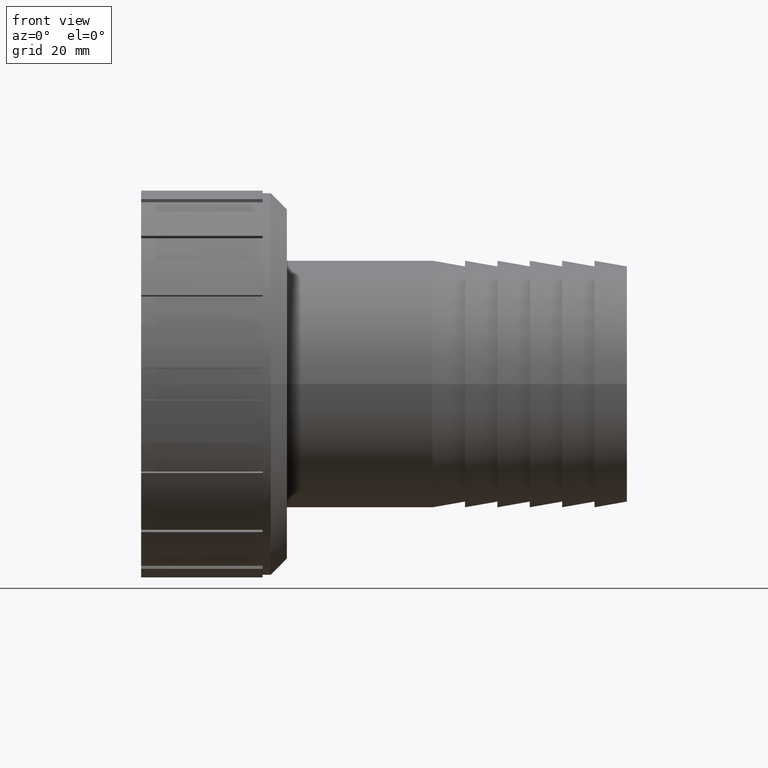
[diagram: clean part render]
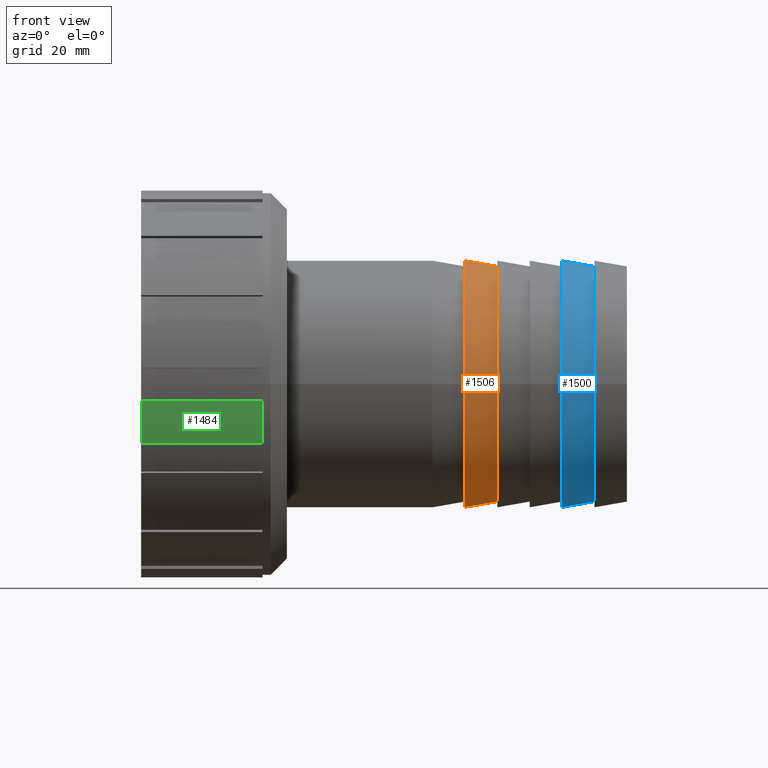
[diagram: same view with three faces highlighted in distinct colors, each labeled with its STEP entity id]
A machine part, front view with three faces highlighted in distinct colors.
Their STEP definitions:

[orange] entity #1506 — the highlighted conical surface has half-angle 10 deg.
#20=CONICAL_SURFACE('',#1672,29.3064472092134,9.99999999999997);
#58=FACE_BOUND('',#326,.T.);
#141=CIRCLE('',#1671,28.6128944184267);
#142=CIRCLE('',#1673,30.);
#225=FACE_OUTER_BOUND('',#325,.T.);
#325=EDGE_LOOP('',(#1361));
#326=EDGE_LOOP('',(#1362));
#732=VERTEX_POINT('',#2574);
#733=VERTEX_POINT('',#2577);
#943=EDGE_CURVE('',#732,#732,#141,.T.);
#944=EDGE_CURVE('',#733,#733,#142,.T.);
#1361=ORIENTED_EDGE('',*,*,#943,.T.);
#1362=ORIENTED_EDGE('',*,*,#944,.F.);
#1506=ADVANCED_FACE('',(#225,#58),#20,.T.);
#1671=AXIS2_PLACEMENT_3D('',#2575,#2127,#2128);
#1672=AXIS2_PLACEMENT_3D('',#2576,#2129,#2130);
#1673=AXIS2_PLACEMENT_3D('',#2578,#2131,#2132);
#2127=DIRECTION('center_axis',(-1.,0.,0.));
#2128=DIRECTION('ref_axis',(0.,0.,1.));
#2129=DIRECTION('center_axis',(-1.,0.,0.));
#2130=DIRECTION('ref_axis',(0.,-1.,0.));
#2131=DIRECTION('center_axis',(-1.,0.,0.));
#2132=DIRECTION('ref_axis',(0.,0.,1.));
#2574=CARTESIAN_POINT('',(86.5333333333333,-28.6128944184267,0.));
#2575=CARTESIAN_POINT('Origin',(86.5333333333333,0.,0.));
#2576=CARTESIAN_POINT('Origin',(82.6,0.,0.));
#2577=CARTESIAN_POINT('',(78.6666666666667,-30.,0.));
#2578=CARTESIAN_POINT('Origin',(78.6666666666667,0.,0.));

[blue] entity #1500 — the highlighted conical surface has half-angle 10 deg.
#17=CONICAL_SURFACE('',#1660,29.3064472092134,9.99999999999993);
#52=FACE_BOUND('',#314,.T.);
#135=CIRCLE('',#1659,28.6128944184268);
#136=CIRCLE('',#1661,30.);
#219=FACE_OUTER_BOUND('',#313,.T.);
#313=EDGE_LOOP('',(#1349));
#314=EDGE_LOOP('',(#1350));
#726=VERTEX_POINT('',#2556);
#727=VERTEX_POINT('',#2559);
#937=EDGE_CURVE('',#726,#726,#135,.T.);
#938=EDGE_CURVE('',#727,#727,#136,.T.);
#1349=ORIENTED_EDGE('',*,*,#937,.T.);
#1350=ORIENTED_EDGE('',*,*,#938,.F.);
#1500=ADVANCED_FACE('',(#219,#52),#17,.T.);
#1659=AXIS2_PLACEMENT_3D('',#2557,#2103,#2104);
#1660=AXIS2_PLACEMENT_3D('',#2558,#2105,#2106);
#1661=AXIS2_PLACEMENT_3D('',#2560,#2107,#2108);
#2103=DIRECTION('center_axis',(-1.,0.,0.));
#2104=DIRECTION('ref_axis',(0.,0.,1.));
#2105=DIRECTION('center_axis',(-1.,0.,0.));
#2106=DIRECTION('ref_axis',(0.,-1.,0.));
#2107=DIRECTION('center_axis',(-1.,0.,0.));
#2108=DIRECTION('ref_axis',(0.,0.,1.));
#2556=CARTESIAN_POINT('',(110.133333333333,-28.6128944184268,0.));
#2557=CARTESIAN_POINT('Origin',(110.133333333333,0.,0.));
#2558=CARTESIAN_POINT('Origin',(106.2,0.,0.));
#2559=CARTESIAN_POINT('',(102.266666666667,-30.,0.));
#2560=CARTESIAN_POINT('Origin',(102.266666666667,0.,0.));

[green] entity #1484 — the highlighted cylindrical surface (partial cylindrical patch) has radius 47.1456 mm, axis along (-1, 0, 0).
#33=CYLINDRICAL_SURFACE('',#1635,47.1456);
#87=CIRCLE('',#1568,47.1456);
#117=CIRCLE('',#1610,47.1456);
#203=FACE_OUTER_BOUND('',#288,.T.);
#288=EDGE_LOOP('',(#1240,#1241,#1242,#1243));
#362=LINE('',#2212,#490);
#368=LINE('',#2224,#496);
#490=VECTOR('',#1726,29.5);
#496=VECTOR('',#1734,29.5);
#617=VERTEX_POINT('',#2208);
#619=VERTEX_POINT('',#2211);
#622=VERTEX_POINT('',#2218);
#624=VERTEX_POINT('',#2222);
#765=EDGE_CURVE('',#619,#617,#362,.T.);
#771=EDGE_CURVE('',#622,#624,#368,.T.);
#883=EDGE_CURVE('',#622,#617,#87,.T.);
#914=EDGE_CURVE('',#624,#619,#117,.T.);
#1240=ORIENTED_EDGE('',*,*,#765,.T.);
#1241=ORIENTED_EDGE('',*,*,#883,.F.);
#1242=ORIENTED_EDGE('',*,*,#771,.T.);
#1243=ORIENTED_EDGE('',*,*,#914,.T.);
#1484=ADVANCED_FACE('',(#203),#33,.T.);
#1568=AXIS2_PLACEMENT_3D('',#2446,#1915,#1916);
#1610=AXIS2_PLACEMENT_3D('',#2492,#2000,#2001);
#1635=AXIS2_PLACEMENT_3D('',#2521,#2052,#2053);
#1726=DIRECTION('',(-1.,0.,0.));
#1734=DIRECTION('',(1.,0.,0.));
#1915=DIRECTION('center_axis',(-1.,0.,0.));
#1916=DIRECTION('ref_axis',(0.,0.,1.));
#2000=DIRECTION('center_axis',(-1.,0.,0.));
#2001=DIRECTION('ref_axis',(0.,0.,1.));
#2052=DIRECTION('center_axis',(-1.,0.,0.));
#2053=DIRECTION('ref_axis',(0.,-1.,0.));
#2208=CARTESIAN_POINT('',(0.,-46.9816148074968,-3.92880000000005));
#2211=CARTESIAN_POINT('',(29.5,-46.9816148074968,-3.92880000000005));
#2212=CARTESIAN_POINT('',(14.75,-46.9816148074968,-3.92880000000005));
#2218=CARTESIAN_POINT('',(0.,-44.9088389940514,-14.3493477052571));
#2222=CARTESIAN_POINT('',(29.5,-44.9088389940514,-14.3493477052571));
#2224=CARTESIAN_POINT('',(14.75,-44.9088389940514,-14.3493477052571));
#2446=CARTESIAN_POINT('Origin',(0.,0.,0.));
#2492=CARTESIAN_POINT('Origin',(29.5,0.,0.));
#2521=CARTESIAN_POINT('Origin',(14.75,0.,0.));